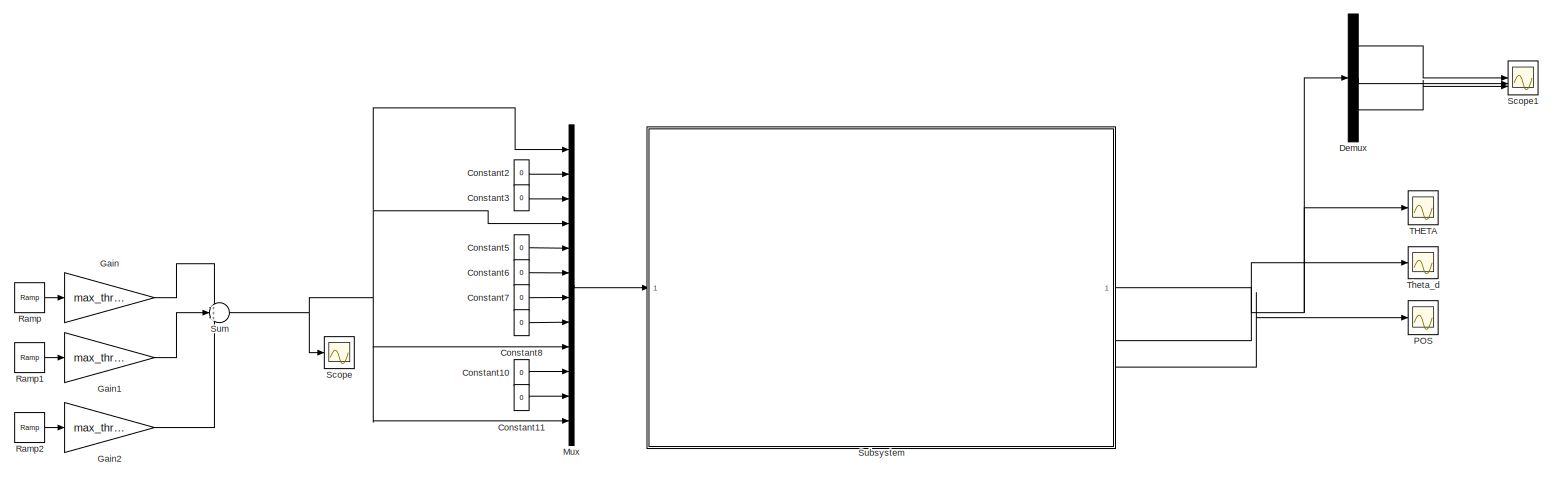
[diagram: root canvas - part 1/1, most of the canvas]
MODEL slx_b8403bf22c3f
KIND model
CONFIG AbsTol = auto
CONFIG EnableMultiTasking = off
CONFIG FixedStep = auto
CONFIG MaxStep = auto
CONFIG MinStep = auto
CONFIG RelTol = 1e-3
CONFIG SampleTimeConstraint = Unconstrained
CONFIG SolverName = VariableStepAuto
CONFIG StartTime = 0.0
CONFIG StopTime = 10
BLOCK [Constant] Constant10
  Value = 0
BLOCK [Constant] Constant11
  Value = 0
BLOCK [Constant] Constant2
  Value = 0
BLOCK [Constant] Constant3
  Value = 0
BLOCK [Constant] Constant5
  Value = 0
BLOCK [Constant] Constant6
  Value = 0
BLOCK [Constant] Constant7
  Value = 0
BLOCK [Constant] Constant8
  Value = 0
BLOCK [Demux] Demux
  Outputs = 3
BLOCK [Gain] Gain
  Gain = max_thrust_N
BLOCK [Gain] Gain1
  Gain = max_thrust_N
BLOCK [Gain] Gain2
  Gain = max_thrust_N
BLOCK [Mux] Mux
  DisplayOption = bar
  Inputs = 12
BLOCK [Scope] POS
  Floating = off
  NumInputPorts = 1
  ScopeSpecificationString = Simulink.scopes.TimeScopeBlockCfg('CurrentConfiguration', extmgr.ConfigurationSet(extmgr.Configuration('Core','General UI',true),extmgr.Configuration('Core','Source UI',true),extmgr.Configuration('Sources','WiredSimulink',true,'DataLoggingVariableName','ScopeData3'),extmgr.Configuration('Visuals','Time Domain',true,'SerializedDisplays',{struct('MinYLimReal','-2.42268','MaxYLimReal','2.47347','YLab...<+1685ch>
BLOCK [Reference] Ramp  REF=simulink/Sources/Ramp
  SourceBlock = simulink/Sources/Ramp
  SourceType = Ramp
BLOCK [Reference] Ramp1  REF=simulink/Sources/Ramp
  SourceBlock = simulink/Sources/Ramp
  SourceType = Ramp
BLOCK [Reference] Ramp2  REF=simulink/Sources/Ramp
  SourceBlock = simulink/Sources/Ramp
  SourceType = Ramp
BLOCK [Scope] Scope
  Floating = off
  NumInputPorts = 1
  ScopeSpecificationString = Simulink.scopes.TimeScopeBlockCfg('CurrentConfiguration', extmgr.ConfigurationSet(extmgr.Configuration('Core','General UI',true),extmgr.Configuration('Core','Source UI',true),extmgr.Configuration('Sources','WiredSimulink',true,'DataLoggingVariableName','ScopeData1'),extmgr.Configuration('Visuals','Time Domain',true,'SerializedDisplays',{struct('MinYLimReal','-0.00981','MaxYLimReal','0.08829','YLab...<+1480ch>
BLOCK [Scope] Scope1
  Floating = off
  NumInputPorts = 3
  ScopeSpecificationString = Simulink.scopes.TimeScopeBlockCfg('CurrentConfiguration', extmgr.ConfigurationSet(extmgr.Configuration('Core','General UI',true),extmgr.Configuration('Core','Source UI',true),extmgr.Configuration('Sources','WiredSimulink',true,'DataLoggingVariableName','ScopeData4'),extmgr.Configuration('Visuals','Time Domain',true,'SerializedDisplays',{struct('MinYLimReal','-0.48427','MaxYLimReal','1.48993','YLab...<+1548ch>
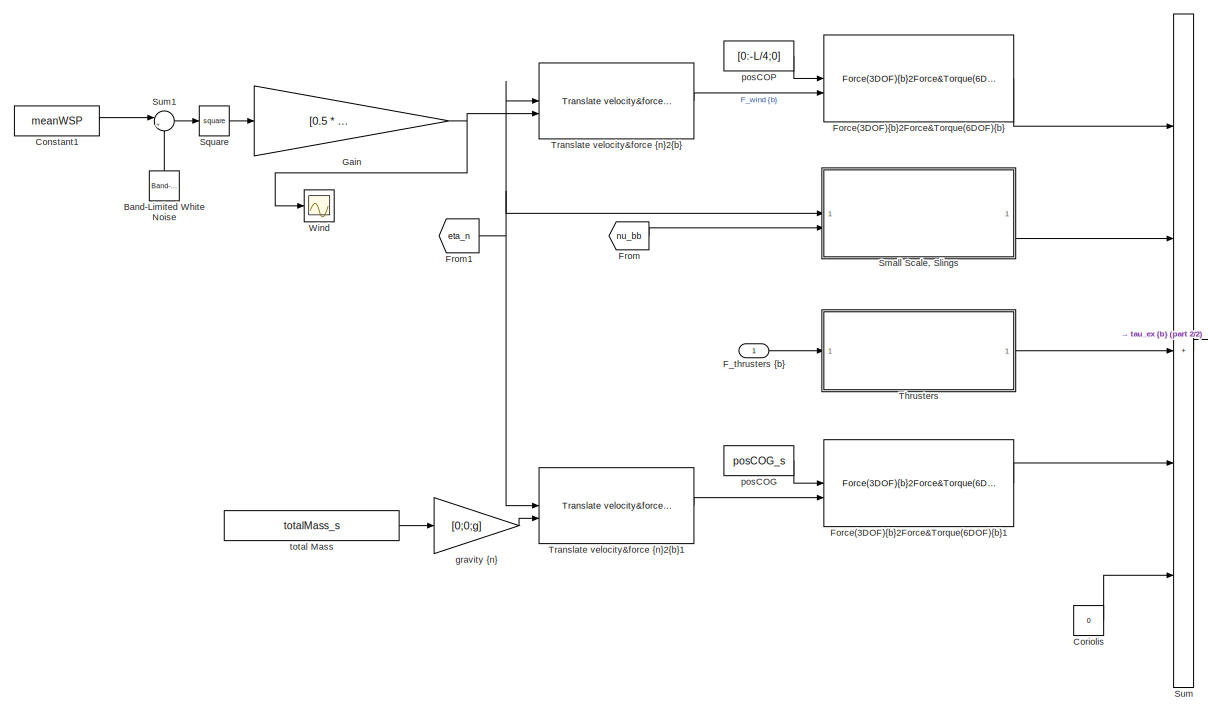
[diagram: Subsystem - part 1/2, left side, full height]
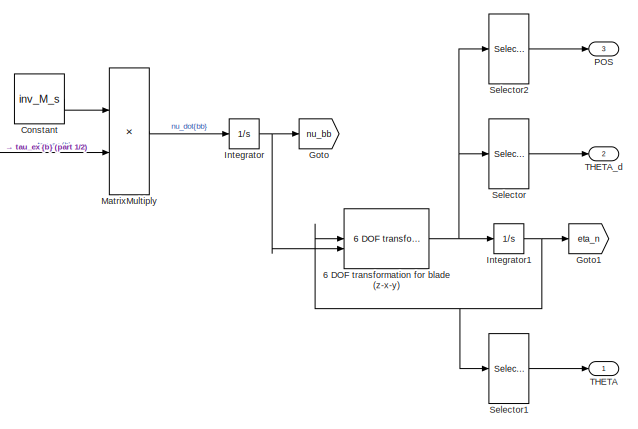
[diagram: Subsystem - part 2/2, middle right region]
BLOCK [SubSystem] Subsystem
BLOCK [Reference] Subsystem/6 DOF transformation for blade (z-x-y)  REF=MarIn_blade/Basic functions/6 DOF transformation for blade
(z-x-y)
  NameLocation = top
  SourceBlock = MarIn_blade/Basic functions/6 DOF transformation for blade\n(z-x-y)
  SourceType = 6 DOF transformation for blade (z-x-y)
BLOCK [Reference] Subsystem/Band-Limited White Noise  REF=simulink/Sources/Band-Limited
White Noise
  NameLocation = right
  SourceBlock = simulink/Sources/Band-Limited\nWhite Noise
  SourceType = Band-Limited White Noise.
BLOCK [Constant] Subsystem/Constant
  Value = inv_M_s
BLOCK [Constant] Subsystem/Constant1
  Value = meanWSP
BLOCK [Constant] Subsystem/Coriolis
  Value = 0
BLOCK [Inport] Subsystem/F_thrusters {b}
BLOCK [Reference] Subsystem/Force(3DOF){b}2Force&Torque(6DOF){b}  REF=MarIn_blade/Basic functions/Force(3DOF){b}2Force&Torque(6DOF){b}
  SourceBlock = MarIn_blade/Basic functions/Force(3DOF){b}2Force&Torque(6DOF){b}
  SourceType = Force(3DOF){bb}2Force&Torque(6DOF){bb}
BLOCK [Reference] Subsystem/Force(3DOF){b}2Force&Torque(6DOF){b}1  REF=MarIn_blade/Basic functions/Force(3DOF){b}2Force&Torque(6DOF){b}
  SourceBlock = MarIn_blade/Basic functions/Force(3DOF){b}2Force&Torque(6DOF){b}
  SourceType = Force(3DOF){bb}2Force&Torque(6DOF){bb}
BLOCK [From] Subsystem/From
  GotoTag = nu_bb
BLOCK [From] Subsystem/From1
  GotoTag = eta_n
BLOCK [Gain] Subsystem/Gain
  Gain = [0.5 * rho_s * C_d_s;  0.1;  0;]
BLOCK [Goto] Subsystem/Goto
  GotoTag = nu_bb
BLOCK [Goto] Subsystem/Goto1
  GotoTag = eta_n
BLOCK [Integrator] Subsystem/Integrator
BLOCK [Integrator] Subsystem/Integrator1
BLOCK [Product] Subsystem/MatrixMultiply
  Multiplication = Matrix(*)
BLOCK [Outport] Subsystem/POS
  Port = 3
BLOCK [Selector] Subsystem/Selector
  IndexOptions = Index vector (dialog)
  Indices = [4 5 6]
  InputPortWidth = 6
  OutputSizes = 1
BLOCK [Selector] Subsystem/Selector1
  IndexOptions = Index vector (dialog)
  Indices = [4 5 6]
  InputPortWidth = 6
  OutputSizes = 1
BLOCK [Selector] Subsystem/Selector2
  IndexOptions = Index vector (dialog)
  Indices = [1 2 3]
  InputPortWidth = 6
  OutputSizes = 1
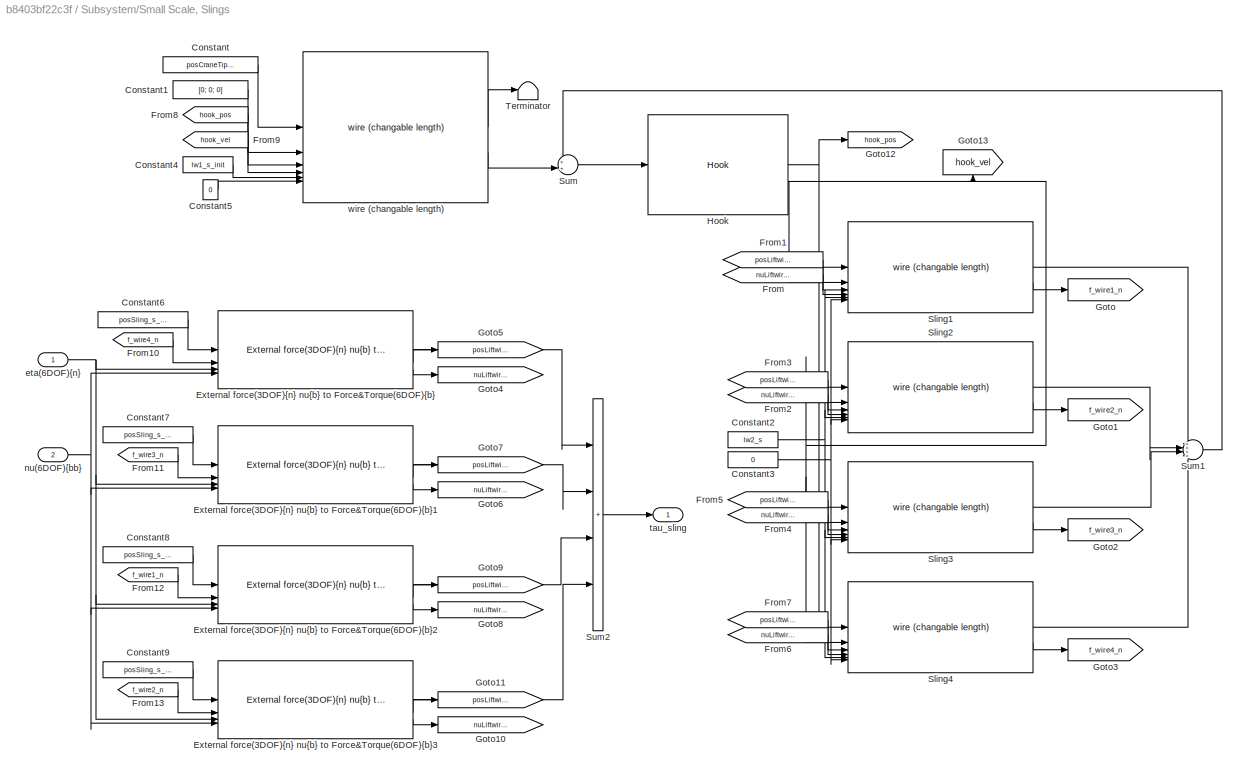
BLOCK [SubSystem] Subsystem/Small Scale, Slings
BLOCK [Constant] Subsystem/Small Scale, Slings/Constant
  Value = posCraneTip_s
BLOCK [Constant] Subsystem/Small Scale, Slings/Constant1
  Value = [0; 0; 0]
BLOCK [Constant] Subsystem/Small Scale, Slings/Constant2
  Value = lw2_s
BLOCK [Constant] Subsystem/Small Scale, Slings/Constant3
  Value = 0
BLOCK [Constant] Subsystem/Small Scale, Slings/Constant4
  Value = lw1_s_init
BLOCK [Constant] Subsystem/Small Scale, Slings/Constant5
  Value = 0
BLOCK [Constant] Subsystem/Small Scale, Slings/Constant6
  Value = posSling_s_b(:,4)
BLOCK [Constant] Subsystem/Small Scale, Slings/Constant7
  Value = posSling_s_b(:,3)
BLOCK [Constant] Subsystem/Small Scale, Slings/Constant8
  Value = posSling_s_b(:,1)
BLOCK [Constant] Subsystem/Small Scale, Slings/Constant9
  Value = posSling_s_b(:,2)
BLOCK [Reference] Subsystem/Small Scale, Slings/External force(3DOF){n} nu{b} to Force&Torque(6DOF){b}  REF=MarIn_blade/Basic functions/External force(3DOF){n} nu{b} to Force&Torque(6DOF){b}
  SourceBlock = MarIn_blade/Basic functions/External force(3DOF){n} nu{b} to Force&Torque(6DOF){b}
  SourceProductName = MarIn (Blade)
  SourceType = External force(3DOF){n} nu{b} to Force&Torque(6DOF){b}
BLOCK [Reference] Subsystem/Small Scale, Slings/External force(3DOF){n} nu{b} to Force&Torque(6DOF){b}1  REF=MarIn_blade/Basic functions/External force(3DOF){n} nu{b} to Force&Torque(6DOF){b}
  SourceBlock = MarIn_blade/Basic functions/External force(3DOF){n} nu{b} to Force&Torque(6DOF){b}
  SourceProductName = MarIn (Blade)
  SourceType = External force(3DOF){n} nu{b} to Force&Torque(6DOF){b}
BLOCK [Reference] Subsystem/Small Scale, Slings/External force(3DOF){n} nu{b} to Force&Torque(6DOF){b}2  REF=MarIn_blade/Basic functions/External force(3DOF){n} nu{b} to Force&Torque(6DOF){b}
  SourceBlock = MarIn_blade/Basic functions/External force(3DOF){n} nu{b} to Force&Torque(6DOF){b}
  SourceProductName = MarIn (Blade)
  SourceType = External force(3DOF){n} nu{b} to Force&Torque(6DOF){b}
BLOCK [Reference] Subsystem/Small Scale, Slings/External force(3DOF){n} nu{b} to Force&Torque(6DOF){b}3  REF=MarIn_blade/Basic functions/External force(3DOF){n} nu{b} to Force&Torque(6DOF){b}
  SourceBlock = MarIn_blade/Basic functions/External force(3DOF){n} nu{b} to Force&Torque(6DOF){b}
  SourceProductName = MarIn (Blade)
  SourceType = External force(3DOF){n} nu{b} to Force&Torque(6DOF){b}
BLOCK [From] Subsystem/Small Scale, Slings/From
  GotoTag = nuLiftwire1_n
BLOCK [From] Subsystem/Small Scale, Slings/From1
  GotoTag = posLiftwire1_n
BLOCK [From] Subsystem/Small Scale, Slings/From10
  GotoTag = f_wire4_n
BLOCK [From] Subsystem/Small Scale, Slings/From11
  GotoTag = f_wire3_n
BLOCK [From] Subsystem/Small Scale, Slings/From12
  GotoTag = f_wire1_n
BLOCK [From] Subsystem/Small Scale, Slings/From13
  GotoTag = f_wire2_n
BLOCK [From] Subsystem/Small Scale, Slings/From2
  GotoTag = nuLiftwire2_n
BLOCK [From] Subsystem/Small Scale, Slings/From3
  GotoTag = posLiftwire2_n
BLOCK [From] Subsystem/Small Scale, Slings/From4
  GotoTag = nuLiftwire3_n
BLOCK [From] Subsystem/Small Scale, Slings/From5
  GotoTag = posLiftwire3_n
BLOCK [From] Subsystem/Small Scale, Slings/From6
  GotoTag = nuLiftwire4_n
BLOCK [From] Subsystem/Small Scale, Slings/From7
  GotoTag = posLiftwire4_n
BLOCK [From] Subsystem/Small Scale, Slings/From8
  GotoTag = hook_pos
BLOCK [From] Subsystem/Small Scale, Slings/From9
  GotoTag = hook_vel
BLOCK [Goto] Subsystem/Small Scale, Slings/Goto
  GotoTag = f_wire1_n
BLOCK [Goto] Subsystem/Small Scale, Slings/Goto1
  GotoTag = f_wire2_n
BLOCK [Goto] Subsystem/Small Scale, Slings/Goto10
  GotoTag = nuLiftwire2_n
BLOCK [Goto] Subsystem/Small Scale, Slings/Goto11
  GotoTag = posLiftwire2_n
BLOCK [Goto] Subsystem/Small Scale, Slings/Goto12
  GotoTag = hook_pos
BLOCK [Goto] Subsystem/Small Scale, Slings/Goto13
  GotoTag = hook_vel
  NameLocation = left
BLOCK [Goto] Subsystem/Small Scale, Slings/Goto2
  GotoTag = f_wire3_n
BLOCK [Goto] Subsystem/Small Scale, Slings/Goto3
  GotoTag = f_wire4_n
BLOCK [Goto] Subsystem/Small Scale, Slings/Goto4
  GotoTag = nuLiftwire4_n
BLOCK [Goto] Subsystem/Small Scale, Slings/Goto5
  GotoTag = posLiftwire4_n
BLOCK [Goto] Subsystem/Small Scale, Slings/Goto6
  GotoTag = nuLiftwire3_n
BLOCK [Goto] Subsystem/Small Scale, Slings/Goto7
  GotoTag = posLiftwire3_n
BLOCK [Goto] Subsystem/Small Scale, Slings/Goto8
  GotoTag = nuLiftwire1_n
BLOCK [Goto] Subsystem/Small Scale, Slings/Goto9
  GotoTag = posLiftwire1_n
BLOCK [Reference] Subsystem/Small Scale, Slings/Hook  REF=MarIn_blade/Lifting equipments
(winch, wire, hook)/Hook
  SourceBlock = MarIn_blade/Lifting equipments\n(winch, wire, hook)/Hook
  SourceProductName = MarIn (Blade)
  SourceType = Hook
BLOCK [Reference] Subsystem/Small Scale, Slings/Sling1  REF=MarIn_blade/Lifting equipments
(winch, wire, hook)/wire (changable length)
  SourceBlock = MarIn_blade/Lifting equipments\n(winch, wire, hook)/wire (changable length)
  SourceProductName = MarIn (Blade)
  SourceType = Wire
BLOCK [Reference] Subsystem/Small Scale, Slings/Sling2  REF=MarIn_blade/Lifting equipments
(winch, wire, hook)/wire (changable length)
  SourceBlock = MarIn_blade/Lifting equipments\n(winch, wire, hook)/wire (changable length)
  SourceProductName = MarIn (Blade)
  SourceType = Wire
BLOCK [Reference] Subsystem/Small Scale, Slings/Sling3  REF=MarIn_blade/Lifting equipments
(winch, wire, hook)/wire (changable length)
  SourceBlock = MarIn_blade/Lifting equipments\n(winch, wire, hook)/wire (changable length)
  SourceProductName = MarIn (Blade)
  SourceType = Wire
BLOCK [Reference] Subsystem/Small Scale, Slings/Sling4  REF=MarIn_blade/Lifting equipments
(winch, wire, hook)/wire (changable length)
  SourceBlock = MarIn_blade/Lifting equipments\n(winch, wire, hook)/wire (changable length)
  SourceProductName = MarIn (Blade)
  SourceType = Wire
BLOCK [Sum] Subsystem/Small Scale, Slings/Sum
  Inputs = ++|
BLOCK [Sum] Subsystem/Small Scale, Slings/Sum1
  Inputs = ++++
BLOCK [Sum] Subsystem/Small Scale, Slings/Sum2
  IconShape = rectangular
  Inputs = ++++
BLOCK [Terminator] Subsystem/Small Scale, Slings/Terminator
BLOCK [Inport] Subsystem/Small Scale, Slings/eta(6DOF){n}
BLOCK [Inport] Subsystem/Small Scale, Slings/nu(6DOF){bb}
  Port = 2
BLOCK [Outport] Subsystem/Small Scale, Slings/tau_sling
BLOCK [Reference] Subsystem/Small Scale, Slings/wire (changable length)  REF=MarIn_blade/Lifting equipments
(winch, wire, hook)/wire (changable length)
  SourceBlock = MarIn_blade/Lifting equipments\n(winch, wire, hook)/wire (changable length)
  SourceProductName = MarIn (Blade)
  SourceType = Wire
BLOCK [Math] Subsystem/Square
  Operator = square
BLOCK [Sum] Subsystem/Sum
  IconShape = rectangular
  Inputs = +++++
BLOCK [Sum] Subsystem/Sum1
  Inputs = |++
BLOCK [Outport] Subsystem/THETA
BLOCK [Outport] Subsystem/THETA_d
  Port = 2
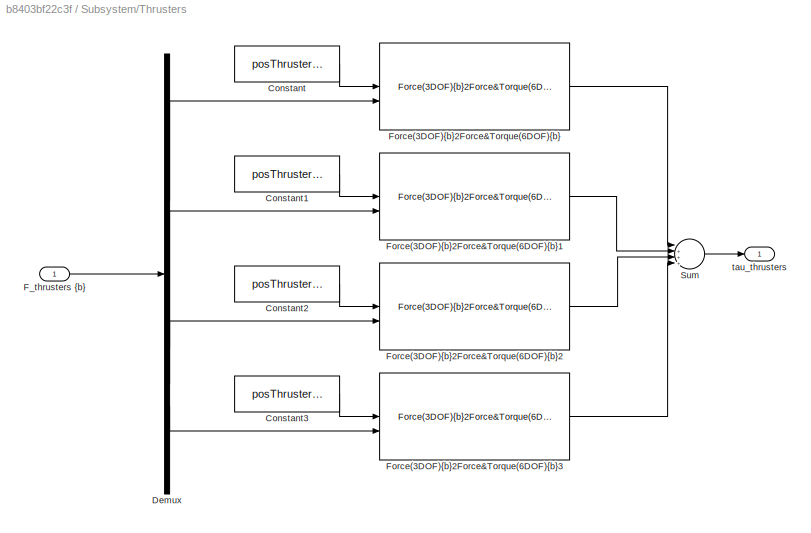
BLOCK [SubSystem] Subsystem/Thrusters
BLOCK [Constant] Subsystem/Thrusters/Constant
  Value = posThrusters_s_b(:,1)
BLOCK [Constant] Subsystem/Thrusters/Constant1
  Value = posThrusters_s_b(:,2)
BLOCK [Constant] Subsystem/Thrusters/Constant2
  Value = posThrusters_s_b(:,3)
BLOCK [Constant] Subsystem/Thrusters/Constant3
  Value = posThrusters_s_b(:,4)
BLOCK [Demux] Subsystem/Thrusters/Demux
BLOCK [Inport] Subsystem/Thrusters/F_thrusters {b}
BLOCK [Reference] Subsystem/Thrusters/Force(3DOF){b}2Force&Torque(6DOF){b}  REF=MarIn_blade/Basic functions/Force(3DOF){b}2Force&Torque(6DOF){b}
  SourceBlock = MarIn_blade/Basic functions/Force(3DOF){b}2Force&Torque(6DOF){b}
  SourceType = Force(3DOF){bb}2Force&Torque(6DOF){bb}
BLOCK [Reference] Subsystem/Thrusters/Force(3DOF){b}2Force&Torque(6DOF){b}1  REF=MarIn_blade/Basic functions/Force(3DOF){b}2Force&Torque(6DOF){b}
  SourceBlock = MarIn_blade/Basic functions/Force(3DOF){b}2Force&Torque(6DOF){b}
  SourceType = Force(3DOF){bb}2Force&Torque(6DOF){bb}
BLOCK [Reference] Subsystem/Thrusters/Force(3DOF){b}2Force&Torque(6DOF){b}2  REF=MarIn_blade/Basic functions/Force(3DOF){b}2Force&Torque(6DOF){b}
  SourceBlock = MarIn_blade/Basic functions/Force(3DOF){b}2Force&Torque(6DOF){b}
  SourceType = Force(3DOF){bb}2Force&Torque(6DOF){bb}
BLOCK [Reference] Subsystem/Thrusters/Force(3DOF){b}2Force&Torque(6DOF){b}3  REF=MarIn_blade/Basic functions/Force(3DOF){b}2Force&Torque(6DOF){b}
  SourceBlock = MarIn_blade/Basic functions/Force(3DOF){b}2Force&Torque(6DOF){b}
  SourceType = Force(3DOF){bb}2Force&Torque(6DOF){bb}
BLOCK [Sum] Subsystem/Thrusters/Sum
  Inputs = |++++|
BLOCK [Outport] Subsystem/Thrusters/tau_thrusters
BLOCK [Reference] Subsystem/Translate velocity&force {n}2{b}  REF=MarIn_blade/Basic functions/Translate velocity&force {n}2{b}
  SourceBlock = MarIn_blade/Basic functions/Translate velocity&force {n}2{b}
  SourceType = Translate velocity&force {n}2{bb}
BLOCK [Reference] Subsystem/Translate velocity&force {n}2{b}1  REF=MarIn_blade/Basic functions/Translate velocity&force {n}2{b}
  SourceBlock = MarIn_blade/Basic functions/Translate velocity&force {n}2{b}
  SourceType = Translate velocity&force {n}2{bb}
BLOCK [Scope] Subsystem/Wind
  Floating = off
  NumInputPorts = 1
  ScopeSpecificationString = Simulink.scopes.TimeScopeBlockCfg('CurrentConfiguration', extmgr.ConfigurationSet(extmgr.Configuration('Core','General UI',true),extmgr.Configuration('Core','Source UI',true),extmgr.Configuration('Sources','WiredSimulink',true,'DataLoggingVariableName','ScopeData2'),extmgr.Configuration('Visuals','Time Domain',true,'SerializedDisplays',{struct('MinYLimReal','-0.3928','MaxYLimReal','3.53522','YLabe...<+1501ch>
BLOCK [Gain] Subsystem/gravity {n}
  Gain = [0;0;g]
BLOCK [Constant] Subsystem/posCOG
  Value = posCOG_s
BLOCK [Constant] Subsystem/posCOP
  Value = [0:-L/4;0]
BLOCK [Constant] Subsystem/total Mass
  Value = totalMass_s
BLOCK [Sum] Sum
  Inputs = +++
BLOCK [Scope] THETA
  Floating = off
  NumInputPorts = 1
  ScopeSpecificationString = Simulink.scopes.TimeScopeBlockCfg('CurrentConfiguration', extmgr.ConfigurationSet(extmgr.Configuration('Core','General UI',true),extmgr.Configuration('Core','Source UI',true),extmgr.Configuration('Sources','WiredSimulink',true),extmgr.Configuration('Visuals','Time Domain',true,'SerializedDisplays',{struct('MinYLimReal','-7.98874','MaxYLimReal','6.32749','YLabelReal','','MinYLimMag','0.00000','MaxY...<+1620ch>
BLOCK [Scope] Theta_d
  Floating = off
  NumInputPorts = 1
  ScopeSpecificationString = Simulink.scopes.TimeScopeBlockCfg('CurrentConfiguration', extmgr.ConfigurationSet(extmgr.Configuration('Core','General UI',true),extmgr.Configuration('Core','Source UI',true),extmgr.Configuration('Sources','WiredSimulink',true,'DataLoggingVariableName','ScopeData1'),extmgr.Configuration('Visuals','Time Domain',true,'SerializedDisplays',{struct('MinYLimReal','-3.44372','MaxYLimReal','3.51488','YLab...<+1493ch>
LINE Constant10:1 -> Mux:10
LINE Constant11:1 -> Mux:11
LINE Constant2:1 -> Mux:2
LINE Constant3:1 -> Mux:3
LINE Constant5:1 -> Mux:5
LINE Constant6:1 -> Mux:6
LINE Constant7:1 -> Mux:7
LINE Constant8:1 -> Mux:8
LINE Demux:1 -> Scope1:1
LINE Demux:2 -> Scope1:2
LINE Demux:3 -> Scope1:3
LINE Gain1:1 -> Sum:2
LINE Gain2:1 -> Sum:3
LINE Gain:1 -> Sum:1
LINE Mux:1 -> Subsystem:1
LINE Ramp1:1 -> Gain1:1
LINE Ramp2:1 -> Gain2:1
LINE Ramp:1 -> Gain:1
NET Subsystem/6 DOF transformation for blade (z-x-y):1 -> Subsystem/Integrator1:1, Subsystem/Selector2:1, Subsystem/Selector:1
LINE Subsystem/Band-Limited White Noise:1 -> Subsystem/Sum1:2
LINE Subsystem/Constant1:1 -> Subsystem/Sum1:1
LINE Subsystem/Constant:1 -> Subsystem/MatrixMultiply:1
LINE Subsystem/Coriolis:1 -> Subsystem/Sum:5
LINE Subsystem/F_thrusters {b}:1 -> Subsystem/Thrusters:1
LINE Subsystem/Force(3DOF){b}2Force&Torque(6DOF){b}1:1 -> Subsystem/Sum:4
LINE Subsystem/Force(3DOF){b}2Force&Torque(6DOF){b}:1 -> Subsystem/Sum:1
NET Subsystem/From1:1 -> Subsystem/Small Scale, Slings:1, Subsystem/Translate velocity&force {n}2{b}1:1, Subsystem/Translate velocity&force {n}2{b}:1
LINE Subsystem/From:1 -> Subsystem/Small Scale, Slings:2
NET Subsystem/Gain:1 -> Subsystem/Translate velocity&force {n}2{b}:2, Subsystem/Wind:1
NET Subsystem/Integrator1:1 -> Subsystem/6 DOF transformation for blade (z-x-y):1, Subsystem/Goto1:1, Subsystem/Selector1:1
NET Subsystem/Integrator:1 -> Subsystem/6 DOF transformation for blade (z-x-y):2, Subsystem/Goto:1
LINE Subsystem/MatrixMultiply:1 -> Subsystem/Integrator:1
LINE Subsystem/Selector1:1 -> Subsystem/THETA:1
LINE Subsystem/Selector2:1 -> Subsystem/POS:1
LINE Subsystem/Selector:1 -> Subsystem/THETA_d:1
LINE Subsystem/Small Scale, Slings/Constant1:1 -> Subsystem/Small Scale, Slings/wire (changable length):2
NET Subsystem/Small Scale, Slings/Constant2:1 -> Subsystem/Small Scale, Slings/Sling1:5, Subsystem/Small Scale, Slings/Sling2:5, Subsystem/Small Scale, Slings/Sling3:5, Subsystem/Small Scale, Slings/Sling4:5
NET Subsystem/Small Scale, Slings/Constant3:1 -> Subsystem/Small Scale, Slings/Sling1:6, Subsystem/Small Scale, Slings/Sling2:6, Subsystem/Small Scale, Slings/Sling3:6, Subsystem/Small Scale, Slings/Sling4:6
LINE Subsystem/Small Scale, Slings/Constant4:1 -> Subsystem/Small Scale, Slings/wire (changable length):5
LINE Subsystem/Small Scale, Slings/Constant5:1 -> Subsystem/Small Scale, Slings/wire (changable length):6
LINE Subsystem/Small Scale, Slings/Constant6:1 -> Subsystem/Small Scale, Slings/External force(3DOF){n} nu{b} to Force&Torque(6DOF){b}:1
LINE Subsystem/Small Scale, Slings/Constant7:1 -> Subsystem/Small Scale, Slings/External force(3DOF){n} nu{b} to Force&Torque(6DOF){b}1:1
LINE Subsystem/Small Scale, Slings/Constant8:1 -> Subsystem/Small Scale, Slings/External force(3DOF){n} nu{b} to Force&Torque(6DOF){b}2:1
LINE Subsystem/Small Scale, Slings/Constant9:1 -> Subsystem/Small Scale, Slings/External force(3DOF){n} nu{b} to Force&Torque(6DOF){b}3:1
LINE Subsystem/Small Scale, Slings/Constant:1 -> Subsystem/Small Scale, Slings/wire (changable length):1
LINE Subsystem/Small Scale, Slings/External force(3DOF){n} nu{b} to Force&Torque(6DOF){b}1:1 -> Subsystem/Small Scale, Slings/Sum2:2
LINE Subsystem/Small Scale, Slings/External force(3DOF){n} nu{b} to Force&Torque(6DOF){b}1:2 -> Subsystem/Small Scale, Slings/Goto7:1
LINE Subsystem/Small Scale, Slings/External force(3DOF){n} nu{b} to Force&Torque(6DOF){b}1:3 -> Subsystem/Small Scale, Slings/Goto6:1
LINE Subsystem/Small Scale, Slings/External force(3DOF){n} nu{b} to Force&Torque(6DOF){b}2:1 -> Subsystem/Small Scale, Slings/Sum2:3
LINE Subsystem/Small Scale, Slings/External force(3DOF){n} nu{b} to Force&Torque(6DOF){b}2:2 -> Subsystem/Small Scale, Slings/Goto9:1
LINE Subsystem/Small Scale, Slings/External force(3DOF){n} nu{b} to Force&Torque(6DOF){b}2:3 -> Subsystem/Small Scale, Slings/Goto8:1
LINE Subsystem/Small Scale, Slings/External force(3DOF){n} nu{b} to Force&Torque(6DOF){b}3:1 -> Subsystem/Small Scale, Slings/Sum2:4
LINE Subsystem/Small Scale, Slings/External force(3DOF){n} nu{b} to Force&Torque(6DOF){b}3:2 -> Subsystem/Small Scale, Slings/Goto11:1
LINE Subsystem/Small Scale, Slings/External force(3DOF){n} nu{b} to Force&Torque(6DOF){b}3:3 -> Subsystem/Small Scale, Slings/Goto10:1
LINE Subsystem/Small Scale, Slings/External force(3DOF){n} nu{b} to Force&Torque(6DOF){b}:1 -> Subsystem/Small Scale, Slings/Sum2:1
LINE Subsystem/Small Scale, Slings/External force(3DOF){n} nu{b} to Force&Torque(6DOF){b}:2 -> Subsystem/Small Scale, Slings/Goto5:1
LINE Subsystem/Small Scale, Slings/External force(3DOF){n} nu{b} to Force&Torque(6DOF){b}:3 -> Subsystem/Small Scale, Slings/Goto4:1
LINE Subsystem/Small Scale, Slings/From10:1 -> Subsystem/Small Scale, Slings/External force(3DOF){n} nu{b} to Force&Torque(6DOF){b}:2
LINE Subsystem/Small Scale, Slings/From11:1 -> Subsystem/Small Scale, Slings/External force(3DOF){n} nu{b} to Force&Torque(6DOF){b}1:2
LINE Subsystem/Small Scale, Slings/From12:1 -> Subsystem/Small Scale, Slings/External force(3DOF){n} nu{b} to Force&Torque(6DOF){b}2:2
LINE Subsystem/Small Scale, Slings/From13:1 -> Subsystem/Small Scale, Slings/External force(3DOF){n} nu{b} to Force&Torque(6DOF){b}3:2
LINE Subsystem/Small Scale, Slings/From1:1 -> Subsystem/Small Scale, Slings/Sling1:3
LINE Subsystem/Small Scale, Slings/From2:1 -> Subsystem/Small Scale, Slings/Sling2:4
LINE Subsystem/Small Scale, Slings/From3:1 -> Subsystem/Small Scale, Slings/Sling2:3
LINE Subsystem/Small Scale, Slings/From4:1 -> Subsystem/Small Scale, Slings/Sling3:4
LINE Subsystem/Small Scale, Slings/From5:1 -> Subsystem/Small Scale, Slings/Sling3:3
LINE Subsystem/Small Scale, Slings/From6:1 -> Subsystem/Small Scale, Slings/Sling4:4
LINE Subsystem/Small Scale, Slings/From7:1 -> Subsystem/Small Scale, Slings/Sling4:3
LINE Subsystem/Small Scale, Slings/From8:1 -> Subsystem/Small Scale, Slings/wire (changable length):3
LINE Subsystem/Small Scale, Slings/From9:1 -> Subsystem/Small Scale, Slings/wire (changable length):4
LINE Subsystem/Small Scale, Slings/From:1 -> Subsystem/Small Scale, Slings/Sling1:4
NET Subsystem/Small Scale, Slings/Hook:1 -> Subsystem/Small Scale, Slings/Goto12:1, Subsystem/Small Scale, Slings/Sling1:1, Subsystem/Small Scale, Slings/Sling2:1, Subsystem/Small Scale, Slings/Sling3:1, Subsystem/Small Scale, Slings/Sling4:1
NET Subsystem/Small Scale, Slings/Hook:2 -> Subsystem/Small Scale, Slings/Goto13:1, Subsystem/Small Scale, Slings/Sling1:2, Subsystem/Small Scale, Slings/Sling2:2, Subsystem/Small Scale, Slings/Sling3:2, Subsystem/Small Scale, Slings/Sling4:2
LINE Subsystem/Small Scale, Slings/Sling1:1 -> Subsystem/Small Scale, Slings/Sum1:1
LINE Subsystem/Small Scale, Slings/Sling1:2 -> Subsystem/Small Scale, Slings/Goto:1
LINE Subsystem/Small Scale, Slings/Sling2:1 -> Subsystem/Small Scale, Slings/Sum1:2
LINE Subsystem/Small Scale, Slings/Sling2:2 -> Subsystem/Small Scale, Slings/Goto1:1
LINE Subsystem/Small Scale, Slings/Sling3:1 -> Subsystem/Small Scale, Slings/Sum1:3
LINE Subsystem/Small Scale, Slings/Sling3:2 -> Subsystem/Small Scale, Slings/Goto2:1
LINE Subsystem/Small Scale, Slings/Sling4:1 -> Subsystem/Small Scale, Slings/Sum1:4
LINE Subsystem/Small Scale, Slings/Sling4:2 -> Subsystem/Small Scale, Slings/Goto3:1
LINE Subsystem/Small Scale, Slings/Sum1:1 -> Subsystem/Small Scale, Slings/Sum:1
LINE Subsystem/Small Scale, Slings/Sum2:1 -> Subsystem/Small Scale, Slings/tau_sling:1
LINE Subsystem/Small Scale, Slings/Sum:1 -> Subsystem/Small Scale, Slings/Hook:1
NET Subsystem/Small Scale, Slings/eta(6DOF){n}:1 -> Subsystem/Small Scale, Slings/External force(3DOF){n} nu{b} to Force&Torque(6DOF){b}1:3, Subsystem/Small Scale, Slings/External force(3DOF){n} nu{b} to Force&Torque(6DOF){b}2:3, Subsystem/Small Scale, Slings/External force(3DOF){n} nu{b} to Force&Torque(6DOF){b}3:3, Subsystem/Small Scale, Slings/External force(3DOF){n} nu{b} to Force&Torque(6DOF){b}:3
NET Subsystem/Small Scale, Slings/nu(6DOF){bb}:1 -> Subsystem/Small Scale, Slings/External force(3DOF){n} nu{b} to Force&Torque(6DOF){b}1:4, Subsystem/Small Scale, Slings/External force(3DOF){n} nu{b} to Force&Torque(6DOF){b}2:4, Subsystem/Small Scale, Slings/External force(3DOF){n} nu{b} to Force&Torque(6DOF){b}3:4, Subsystem/Small Scale, Slings/External force(3DOF){n} nu{b} to Force&Torque(6DOF){b}:4
LINE Subsystem/Small Scale, Slings/wire (changable length):1 -> Subsystem/Small Scale, Slings/Terminator:1
LINE Subsystem/Small Scale, Slings/wire (changable length):2 -> Subsystem/Small Scale, Slings/Sum:2
LINE Subsystem/Small Scale, Slings:1 -> Subsystem/Sum:2
LINE Subsystem/Square:1 -> Subsystem/Gain:1
LINE Subsystem/Sum1:1 -> Subsystem/Square:1
LINE Subsystem/Sum:1 -> Subsystem/MatrixMultiply:2
LINE Subsystem/Thrusters/Constant1:1 -> Subsystem/Thrusters/Force(3DOF){b}2Force&Torque(6DOF){b}1:1
LINE Subsystem/Thrusters/Constant2:1 -> Subsystem/Thrusters/Force(3DOF){b}2Force&Torque(6DOF){b}2:1
LINE Subsystem/Thrusters/Constant3:1 -> Subsystem/Thrusters/Force(3DOF){b}2Force&Torque(6DOF){b}3:1
LINE Subsystem/Thrusters/Constant:1 -> Subsystem/Thrusters/Force(3DOF){b}2Force&Torque(6DOF){b}:1
LINE Subsystem/Thrusters/Demux:1 -> Subsystem/Thrusters/Force(3DOF){b}2Force&Torque(6DOF){b}:2
LINE Subsystem/Thrusters/Demux:2 -> Subsystem/Thrusters/Force(3DOF){b}2Force&Torque(6DOF){b}1:2
LINE Subsystem/Thrusters/Demux:3 -> Subsystem/Thrusters/Force(3DOF){b}2Force&Torque(6DOF){b}2:2
LINE Subsystem/Thrusters/Demux:4 -> Subsystem/Thrusters/Force(3DOF){b}2Force&Torque(6DOF){b}3:2
LINE Subsystem/Thrusters/F_thrusters {b}:1 -> Subsystem/Thrusters/Demux:1
LINE Subsystem/Thrusters/Force(3DOF){b}2Force&Torque(6DOF){b}1:1 -> Subsystem/Thrusters/Sum:2
LINE Subsystem/Thrusters/Force(3DOF){b}2Force&Torque(6DOF){b}2:1 -> Subsystem/Thrusters/Sum:3
LINE Subsystem/Thrusters/Force(3DOF){b}2Force&Torque(6DOF){b}3:1 -> Subsystem/Thrusters/Sum:4
LINE Subsystem/Thrusters/Force(3DOF){b}2Force&Torque(6DOF){b}:1 -> Subsystem/Thrusters/Sum:1
LINE Subsystem/Thrusters/Sum:1 -> Subsystem/Thrusters/tau_thrusters:1
LINE Subsystem/Thrusters:1 -> Subsystem/Sum:3
LINE Subsystem/Translate velocity&force {n}2{b}1:1 -> Subsystem/Force(3DOF){b}2Force&Torque(6DOF){b}1:2
LINE Subsystem/Translate velocity&force {n}2{b}:1 -> Subsystem/Force(3DOF){b}2Force&Torque(6DOF){b}:2
LINE Subsystem/gravity {n}:1 -> Subsystem/Translate velocity&force {n}2{b}1:2
LINE Subsystem/posCOG:1 -> Subsystem/Force(3DOF){b}2Force&Torque(6DOF){b}1:1
LINE Subsystem/posCOP:1 -> Subsystem/Force(3DOF){b}2Force&Torque(6DOF){b}:1
LINE Subsystem/total Mass:1 -> Subsystem/gravity {n}:1
NET Subsystem:1 -> Demux:1, THETA:1
LINE Subsystem:2 -> Theta_d:1
LINE Subsystem:3 -> POS:1
NET Sum:1 -> Mux:1, Mux:12, Mux:4, Mux:9, Scope:1
note: NET lines group one-source signal fan-out (src -> all destinations, sorted); 1:1 wires keep LINE
